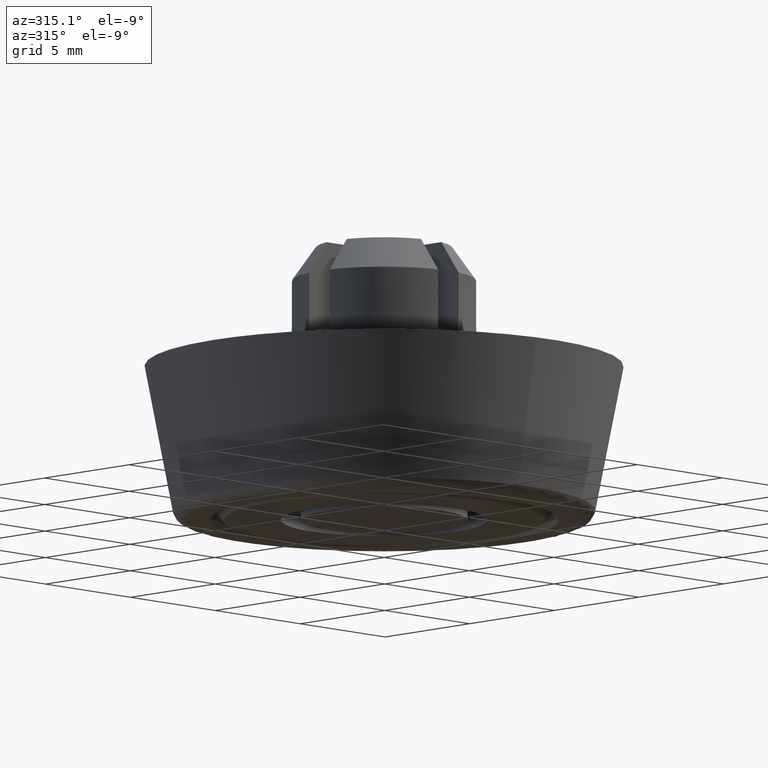
[diagram: clean part render]
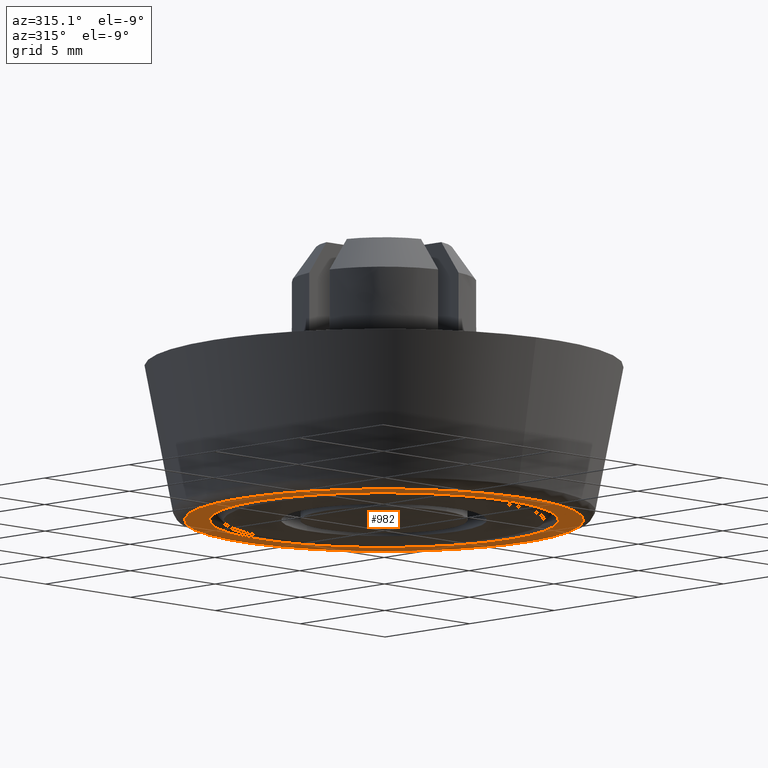
[diagram: same view with one face highlighted and labeled with its STEP entity id]
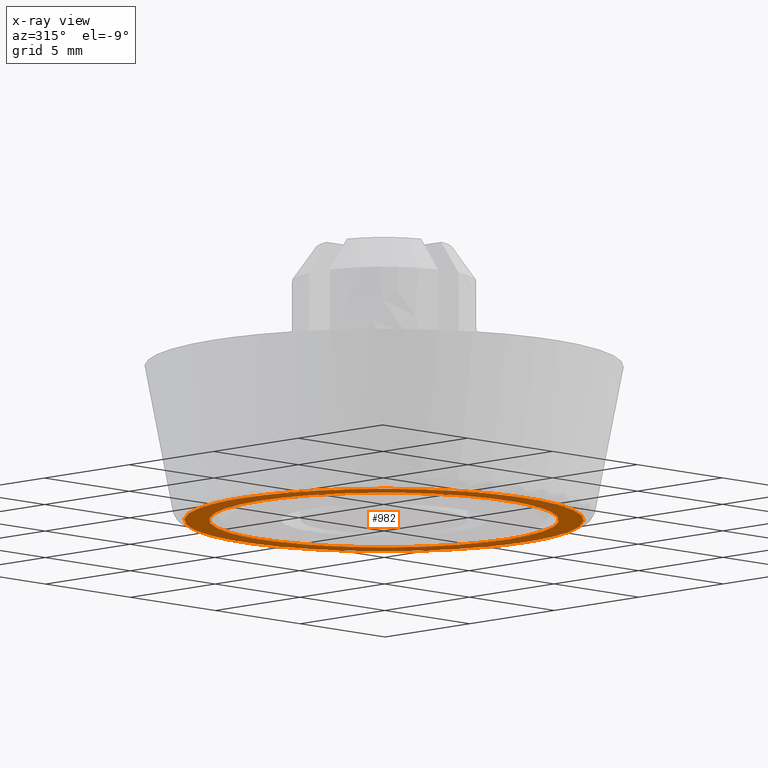
[diagram: x-ray of the same camera — body ghosted, the highlighted face saturated]
A machine part, auxiliary view. The second image highlights one B-rep face of the part: STEP entity #982.
The next image is the same camera in x-ray: the body ghosted, the highlighted face saturated — about 0% of this face is hidden behind the body in this view.
In plain terms, the highlighted face is a freeform B-spline surface patch.
Its self-contained STEP definition (entity closure, byte-faithful):
#766=CARTESIAN_POINT('',(-0.445654460728720,7.286386024751147,-6.500000000003478));
#767=VERTEX_POINT('',#766);
#773=CARTESIAN_POINT('',(7.300002000000000,0.0,-6.499999999999900));
#774=VERTEX_POINT('',#773);
#775=CARTESIAN_POINT('',(-0.445654460728720,7.286386024751147,-6.500000000003478));
#776=CARTESIAN_POINT('',(-0.223035233198962,7.300002000003521,-6.500000000003427));
#777=CARTESIAN_POINT('',(-2.115295E-013,7.300002000003467,-6.500000000003373));
#778=CARTESIAN_POINT('',(7.300001999999896,7.300002000001680,-6.500000000001584));
#779=CARTESIAN_POINT('',(7.300002000000000,0.0,-6.499999999999900));
#787=(BOUNDED_CURVE()B_SPLINE_CURVE(2,(#775,#776,#777,#778,#779),.UNSPECIFIED.,.F.,.U.)B_SPLINE_CURVE_WITH_KNOTS((3,2,3),(0.239332962241330,0.250000000000000,0.500000000000000),.UNSPECIFIED.)CURVE()GEOMETRIC_REPRESENTATION_ITEM()RATIONAL_B_SPLINE_CURVE((0.976072041671833,0.987502787902634,1.0,0.707106781186548,1.0))REPRESENTATION_ITEM(''));
#788=EDGE_CURVE('',#767,#774,#787,.T.);
#790=CARTESIAN_POINT('',(0.445654460728720,-7.286386024751148,-6.500000000003479));
#791=VERTEX_POINT('',#790);
#792=CARTESIAN_POINT('',(7.300002000000000,0.0,-6.499999999999900));
#793=CARTESIAN_POINT('',(7.300002000000108,-6.867156169800029,-6.500000000001688));
#794=CARTESIAN_POINT('',(0.445654460728720,-7.286386024751148,-6.500000000003479));
#802=(BOUNDED_CURVE()B_SPLINE_CURVE(2,(#792,#793,#794),.UNSPECIFIED.,.F.,.U.)B_SPLINE_CURVE_WITH_KNOTS((3,3),(0.500000000000000,0.739332962241330),.UNSPECIFIED.)CURVE()GEOMETRIC_REPRESENTATION_ITEM()RATIONAL_B_SPLINE_CURVE((1.0,0.719603993283914,0.976072041671833))REPRESENTATION_ITEM(''));
#803=EDGE_CURVE('',#774,#791,#802,.T.);
#836=CARTESIAN_POINT('',(-7.300002000000000,0.0,-6.499999999999900));
#837=VERTEX_POINT('',#836);
#838=CARTESIAN_POINT('',(0.445654460728720,-7.286386024751148,-6.500000000003479));
#839=CARTESIAN_POINT('',(0.223035233198962,-7.300002000003521,-6.500000000003428));
#840=CARTESIAN_POINT('',(2.126607E-013,-7.300002000003466,-6.500000000003373));
#841=CARTESIAN_POINT('',(-7.300001999999896,-7.300002000001678,-6.500000000001584));
#842=CARTESIAN_POINT('',(-7.300002000000000,0.0,-6.499999999999900));
#850=(BOUNDED_CURVE()B_SPLINE_CURVE(2,(#838,#839,#840,#841,#842),.UNSPECIFIED.,.F.,.U.)B_SPLINE_CURVE_WITH_KNOTS((3,2,3),(0.739332962241330,0.750000000000000,1.0),.UNSPECIFIED.)CURVE()GEOMETRIC_REPRESENTATION_ITEM()RATIONAL_B_SPLINE_CURVE((0.976072041671833,0.987502787902634,1.0,0.707106781186548,1.0))REPRESENTATION_ITEM(''));
#851=EDGE_CURVE('',#791,#837,#850,.T.);
#853=CARTESIAN_POINT('',(-7.300002000000000,0.0,-6.499999999999900));
#854=CARTESIAN_POINT('',(-7.300002000000108,6.867156169800029,-6.500000000001691));
#855=CARTESIAN_POINT('',(-0.445654460728720,7.286386024751147,-6.500000000003478));
#863=(BOUNDED_CURVE()B_SPLINE_CURVE(2,(#853,#854,#855),.UNSPECIFIED.,.F.,.U.)B_SPLINE_CURVE_WITH_KNOTS((3,3),(0.0,0.239332962241330),.UNSPECIFIED.)CURVE()GEOMETRIC_REPRESENTATION_ITEM()RATIONAL_B_SPLINE_CURVE((1.0,0.719603993283914,0.976072041671833))REPRESENTATION_ITEM(''));
#864=EDGE_CURVE('',#837,#767,#863,.T.);
#871=CARTESIAN_POINT('',(-9.169857075273614,-9.169467889770280,-6.499999999999900));
#872=CARTESIAN_POINT('',(9.169857522504696,-9.169467889770280,-6.499999999999900));
#873=CARTESIAN_POINT('',(-9.169857075273614,9.169468038730525,-6.499999999999900));
#874=CARTESIAN_POINT('',(9.169857522504696,9.169468038730525,-6.499999999999900));
#875=B_SPLINE_SURFACE_WITH_KNOTS('',1,1,((#871,#873),(#872,#874)),.UNSPECIFIED.,.F.,.F.,.U.,(2,2),(2,2),(0.0,18.339714597778311),(0.0,18.338935928500799),.UNSPECIFIED.);
#876=CARTESIAN_POINT('',(8.336991642504799,0.0,-6.499999999999900));
#877=VERTEX_POINT('',#876);
#878=CARTESIAN_POINT('',(8.147476179748761,-1.767501503833157,-6.499999999999899));
#879=VERTEX_POINT('',#878);
#880=CARTESIAN_POINT('',(8.336991642504799,0.0,-6.499999999999900));
#881=CARTESIAN_POINT('',(8.336991643044925,-0.893910887837242,-6.499999999999900));
#882=CARTESIAN_POINT('',(8.147476179748761,-1.767501503833157,-6.499999999999900));
#890=(BOUNDED_CURVE()B_SPLINE_CURVE(2,(#880,#881,#882),.UNSPECIFIED.,.F.,.U.)B_SPLINE_CURVE_WITH_KNOTS((3,3),(0.0,0.036296741471289),.UNSPECIFIED.)CURVE()GEOMETRIC_REPRESENTATION_ITEM()RATIONAL_B_SPLINE_CURVE((1.0,0.957475722232138,0.927299386195423))REPRESENTATION_ITEM(''));
#891=EDGE_CURVE('',#877,#879,#890,.T.);
#892=ORIENTED_EDGE('',*,*,#891,.T.);
#893=CARTESIAN_POINT('',(-8.336991642504799,0.0,-6.499999999999900));
#894=VERTEX_POINT('',#893);
#895=CARTESIAN_POINT('',(8.147476179748761,-1.767501503833157,-6.499999999999899));
#896=CARTESIAN_POINT('',(8.080098742365802,-2.078118585676409,-6.499999999999900));
#897=CARTESIAN_POINT('',(7.926785391772445,-2.630281212976796,-6.499999999999919));
#898=CARTESIAN_POINT('',(7.578288431679244,-3.518920298870086,-6.499999999999892));
#899=CARTESIAN_POINT('',(7.159939473741544,-4.306802296096188,-6.499999999999885));
#900=CARTESIAN_POINT('',(6.628005380977259,-5.080148176286049,-6.499999999999901));
#901=CARTESIAN_POINT('',(6.010952282471691,-5.808956443071780,-6.499999999999938));
#902=CARTESIAN_POINT('',(5.306550463093004,-6.455252100720274,-6.499999999999798));
#903=CARTESIAN_POINT('',(4.597044963555826,-6.967312955853600,-6.499999999999855));
#904=CARTESIAN_POINT('',(3.819192545990632,-7.432975500773455,-6.500000000000044));
#905=CARTESIAN_POINT('',(2.801383449035189,-7.890160536406994,-6.499999999999639));
#906=CARTESIAN_POINT('',(1.646189803431491,-8.199987387111809,-6.500000000000125));
#907=CARTESIAN_POINT('',(0.619714719517715,-8.328711687418643,-6.499999999999854));
#908=CARTESIAN_POINT('',(-0.366525019735992,-8.350293758327474,-6.499999999999886));
#909=CARTESIAN_POINT('',(-1.270237825629563,-8.258622366258948,-6.499999999999902));
#910=CARTESIAN_POINT('',(-2.140316545235478,-8.068170111057023,-6.499999999999901));
#911=CARTESIAN_POINT('',(-2.854360814064517,-7.846315944002613,-6.499999999999901));
#912=CARTESIAN_POINT('',(-3.720614379406787,-7.484569509835468,-6.499999999999908));
#913=CARTESIAN_POINT('',(-4.634133958476199,-6.963278984136970,-6.499999999999896));
#914=CARTESIAN_POINT('',(-5.490574576863658,-6.300390083403892,-6.499999999999905));
#915=CARTESIAN_POINT('',(-6.226938388089082,-5.573750690818120,-6.499999999999901));
#916=CARTESIAN_POINT('',(-6.801975485934149,-4.850815099364430,-6.499999999999904));
#917=CARTESIAN_POINT('',(-7.275522968410722,-4.096194654027430,-6.499999999999900));
#918=CARTESIAN_POINT('',(-7.675940050154866,-3.300218765869960,-6.499999999999902));
#919=CARTESIAN_POINT('',(-7.994159640880183,-2.433021049313068,-6.499999999999928));
#920=CARTESIAN_POINT('',(-8.264042381494242,-1.303137436284264,-6.499999999999774));
#921=CARTESIAN_POINT('',(-8.337050883346782,-0.508554050928220,-6.500000000000143));
#922=CARTESIAN_POINT('',(-8.336991642504799,0.0,-6.499999999999900));
#923=B_SPLINE_CURVE_WITH_KNOTS('',3,(#895,#896,#897,#898,#899,#900,#901,#902,#903,#904,#905,#906,#907,#908,#909,#910,#911,#912,#913,#914,#915,#916,#917,#918,#919,#920,#921,#922),.UNSPECIFIED.,.F.,.U.,(4,1,1,1,1,1,1,1,1,1,1,1,1,1,1,1,1,1,1,1,1,1,1,1,1,4),(1.369131E-009,0.953522667792893,1.716351721162191,2.860596969369929,3.623425358094078,4.529282120453932,5.721200930177869,6.484030124379004,7.151502554390326,8.438774271017076,9.821403399974079,10.727256971139409,11.537740654840240,12.777334980956340,13.444804816806871,14.207633486853490,15.018141686090200,16.257735744893161,17.354301538722812,18.260160213224111,19.356726580014460,20.119555280073019,20.930060419573280,22.026622334560340,22.884799203624532,24.410447604722581),.UNSPECIFIED.);
#924=EDGE_CURVE('',#879,#894,#923,.T.);
#925=ORIENTED_EDGE('',*,*,#924,.T.);
#926=CARTESIAN_POINT('',(-8.147476179748761,1.767501503833156,-6.499999999999899));
#927=VERTEX_POINT('',#926);
#928=CARTESIAN_POINT('',(-8.336991642504799,0.0,-6.499999999999900));
#929=CARTESIAN_POINT('',(-8.336991643044925,0.893910887837242,-6.499999999999899));
#930=CARTESIAN_POINT('',(-8.147476179748761,1.767501503833157,-6.499999999999900));
#938=(BOUNDED_CURVE()B_SPLINE_CURVE(2,(#928,#929,#930),.UNSPECIFIED.,.F.,.U.)B_SPLINE_CURVE_WITH_KNOTS((3,3),(0.500000000000000,0.536296741471289),.UNSPECIFIED.)CURVE()GEOMETRIC_REPRESENTATION_ITEM()RATIONAL_B_SPLINE_CURVE((1.0,0.957475722232138,0.927299386195423))REPRESENTATION_ITEM(''));
#939=EDGE_CURVE('',#894,#927,#938,.T.);
#940=ORIENTED_EDGE('',*,*,#939,.T.);
#941=CARTESIAN_POINT('',(-8.147476179748761,1.767501503833156,-6.499999999999899));
#942=CARTESIAN_POINT('',(-8.039715388410665,2.264507965724305,-6.499999999999893));
#943=CARTESIAN_POINT('',(-7.823894237874230,2.949448535062692,-6.499999999999895));
#944=CARTESIAN_POINT('',(-7.402761107578613,3.858543599661110,-6.499999999999915));
#945=CARTESIAN_POINT('',(-6.997798529233339,4.561865534716381,-6.499999999999869));
#946=CARTESIAN_POINT('',(-6.528186183035890,5.204468836514343,-6.499999999999900));
#947=CARTESIAN_POINT('',(-5.949797123531042,5.860494449286232,-6.499999999999935));
#948=CARTESIAN_POINT('',(-5.284409244755866,6.478062968398305,-6.499999999999819));
#949=CARTESIAN_POINT('',(-4.532432501897014,7.014273351683165,-6.500000000000011));
#950=CARTESIAN_POINT('',(-3.800709643236766,7.432621569121904,-6.499999999999651));
#951=CARTESIAN_POINT('',(-3.077726309087061,7.764854225748207,-6.500000000000271));
#952=CARTESIAN_POINT('',(-2.338668215609027,8.013825585956242,-6.499999999999705));
#953=CARTESIAN_POINT('',(-1.565687101778514,8.199966438366168,-6.499999999999858));
#954=CARTESIAN_POINT('',(-0.888761513045209,8.300656870604797,-6.499999999999948));
#955=CARTESIAN_POINT('',(-0.079198234868155,8.348494135065485,-6.499999999999883));
#956=CARTESIAN_POINT('',(0.891298949650359,8.317005640348924,-6.499999999999912));
#957=CARTESIAN_POINT('',(1.912438625327212,8.139009816408308,-6.499999999999899));
#958=CARTESIAN_POINT('',(2.854361355092330,7.846313637054577,-6.499999999999900));
#959=CARTESIAN_POINT('',(3.559103598674660,7.552000167180228,-6.499999999999896));
#960=CARTESIAN_POINT('',(4.233828178094339,7.194613187138602,-6.499999999999905));
#961=CARTESIAN_POINT('',(4.927724958855926,6.744204615234470,-6.499999999999895));
#962=CARTESIAN_POINT('',(5.756152191479469,6.072219836940771,-6.499999999999905));
#963=CARTESIAN_POINT('',(6.576633898250418,5.179818576404506,-6.499999999999901));
#964=CARTESIAN_POINT('',(7.228808912144442,4.197580153671278,-6.499999999999907));
#965=CARTESIAN_POINT('',(7.660120034503247,3.327788478237010,-6.499999999999899));
#966=CARTESIAN_POINT('',(7.938444608770526,2.582512750036054,-6.499999999999850));
#967=CARTESIAN_POINT('',(8.149626861744920,1.815816659314959,-6.500000000000277));
#968=CARTESIAN_POINT('',(8.298771737623905,0.969414458742164,-6.499999999998873));
#969=CARTESIAN_POINT('',(8.337000329184496,0.333732436351634,-6.500000000000860));
#970=CARTESIAN_POINT('',(8.336991642504799,0.0,-6.499999999999900));
#971=B_SPLINE_CURVE_WITH_KNOTS('',3,(#941,#942,#943,#944,#945,#946,#947,#948,#949,#950,#951,#952,#953,#954,#955,#956,#957,#958,#959,#960,#961,#962,#963,#964,#965,#966,#967,#968,#969,#970),.UNSPECIFIED.,.F.,.U.,(4,1,1,1,1,1,1,1,1,1,1,1,1,1,1,1,1,1,1,1,1,1,1,1,1,1,1,4),(1.367521E-009,1.525650302938008,2.145445302798585,3.003625703621879,3.957162467365475,4.529282120453871,5.625846387381976,6.674734127349147,7.294535606916696,8.152717254341731,9.058574827550874,9.630693107294940,10.536546805298521,11.108672873292980,12.062191041335341,13.444804816807441,14.207633486854011,15.018141686090660,15.733293275557170,16.496122525499931,17.497332744180419,18.927634365469292,20.119555280073289,21.025412300167631,21.835918642888910,22.503392934891728,23.409249994213351,24.410447604722560),.UNSPECIFIED.);
#972=EDGE_CURVE('',#927,#877,#971,.T.);
#973=ORIENTED_EDGE('',*,*,#972,.T.);
#974=EDGE_LOOP('',(#892,#925,#940,#973));
#975=FACE_OUTER_BOUND('',#974,.T.);
#976=ORIENTED_EDGE('',*,*,#803,.F.);
#977=ORIENTED_EDGE('',*,*,#788,.F.);
#978=ORIENTED_EDGE('',*,*,#864,.F.);
#979=ORIENTED_EDGE('',*,*,#851,.F.);
#980=EDGE_LOOP('',(#976,#977,#978,#979));
#981=FACE_BOUND('',#980,.T.);
#982=ADVANCED_FACE('',(#975,#981),#875,.F.);